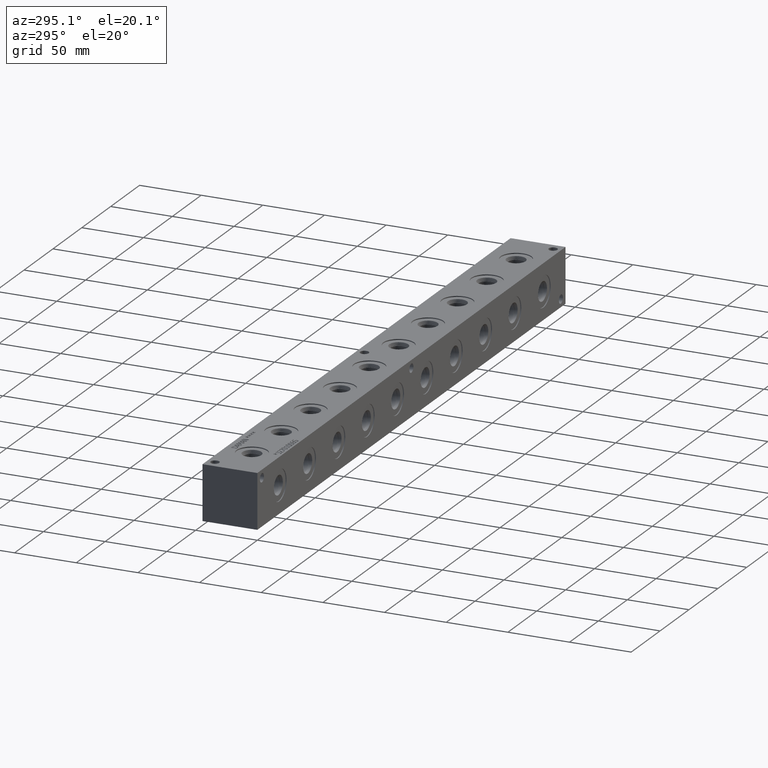
[diagram: clean part render]
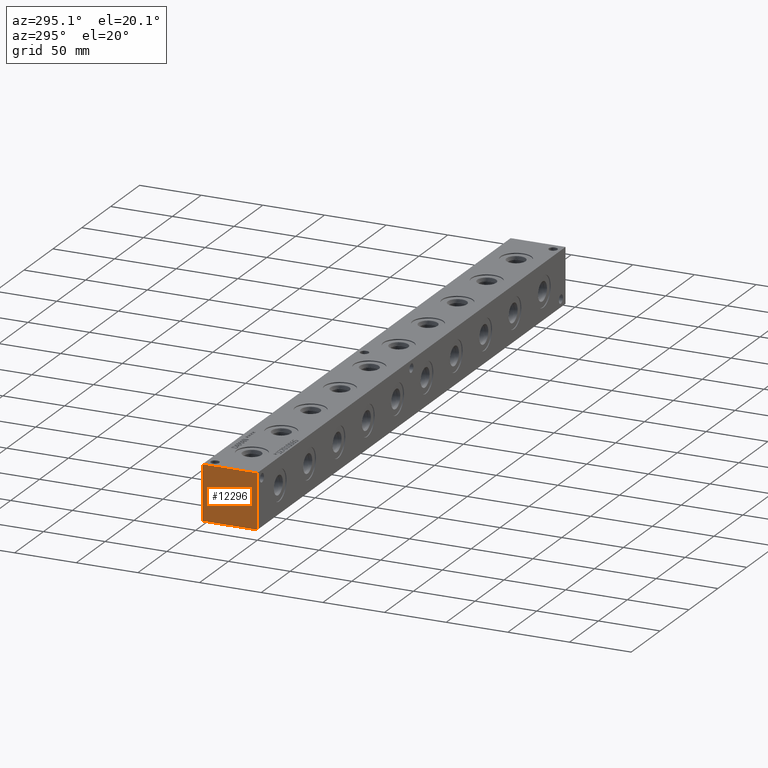
[diagram: same view with one face highlighted and labeled with its STEP entity id]
A machine part, auxiliary view. The second image highlights one B-rep face of the part: STEP entity #12296.
In plain terms, the highlighted planar face has unit normal (-1, 0, 0).
Its self-contained STEP definition (entity closure, byte-faithful):
#2137=FACE_OUTER_BOUND('',#2903,.T.);
#2903=EDGE_LOOP('',(#10998,#10999,#11000,#11001));
#3191=LINE('',#18914,#4022);
#3761=LINE('',#22070,#4592);
#3762=LINE('',#22071,#4593);
#3763=LINE('',#22072,#4594);
#4022=VECTOR('',#13951,10.);
#4592=VECTOR('',#16881,10.);
#4593=VECTOR('',#16882,10.);
#4594=VECTOR('',#16883,10.);
#4884=VERTEX_POINT('',#18907);
#4887=VERTEX_POINT('',#18912);
#5768=VERTEX_POINT('',#22068);
#5769=VERTEX_POINT('',#22069);
#6201=EDGE_CURVE('',#4887,#4884,#3191,.T.);
#7531=EDGE_CURVE('',#5768,#5769,#3761,.T.);
#7532=EDGE_CURVE('',#5769,#4884,#3762,.T.);
#7533=EDGE_CURVE('',#5768,#4887,#3763,.T.);
#10998=ORIENTED_EDGE('',*,*,#7531,.T.);
#10999=ORIENTED_EDGE('',*,*,#7532,.T.);
#11000=ORIENTED_EDGE('',*,*,#6201,.F.);
#11001=ORIENTED_EDGE('',*,*,#7533,.F.);
#11336=PLANE('',#13560);
#12296=ADVANCED_FACE('',(#2137),#11336,.T.);
#13560=AXIS2_PLACEMENT_3D('',#22067,#16879,#16880);
#13951=DIRECTION('',(0.,-1.,0.));
#16879=DIRECTION('center_axis',(-1.,0.,0.));
#16880=DIRECTION('ref_axis',(0.,-1.,0.));
#16881=DIRECTION('',(0.,-1.,0.));
#16882=DIRECTION('',(0.,0.,1.));
#16883=DIRECTION('',(0.,0.,1.));
#18907=CARTESIAN_POINT('',(0.,0.,44.45));
#18912=CARTESIAN_POINT('',(0.,44.45,44.45));
#18914=CARTESIAN_POINT('',(0.,44.45,44.45));
#22067=CARTESIAN_POINT('Origin',(0.,44.45,0.));
#22068=CARTESIAN_POINT('',(0.,44.45,0.));
#22069=CARTESIAN_POINT('',(0.,0.,0.));
#22070=CARTESIAN_POINT('',(0.,44.45,0.));
#22071=CARTESIAN_POINT('',(0.,0.,0.));
#22072=CARTESIAN_POINT('',(0.,44.45,0.));